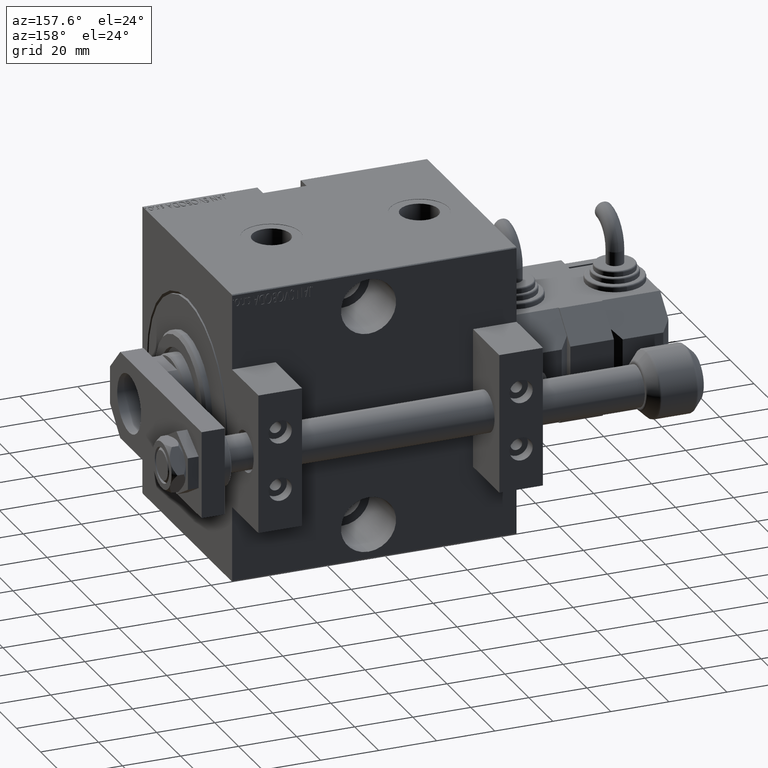
[diagram: clean part render]
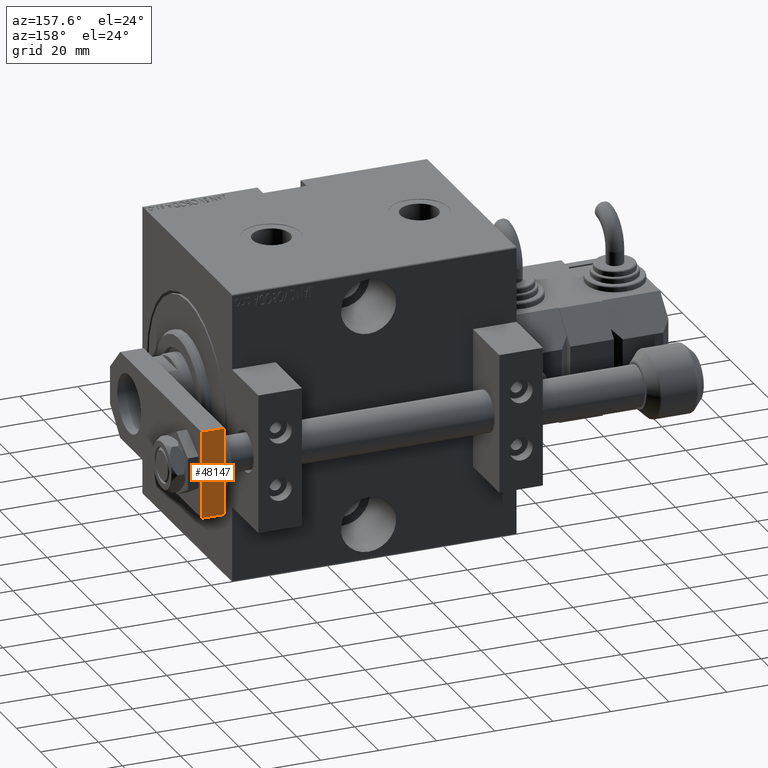
[diagram: same view with one face highlighted and labeled with its STEP entity id]
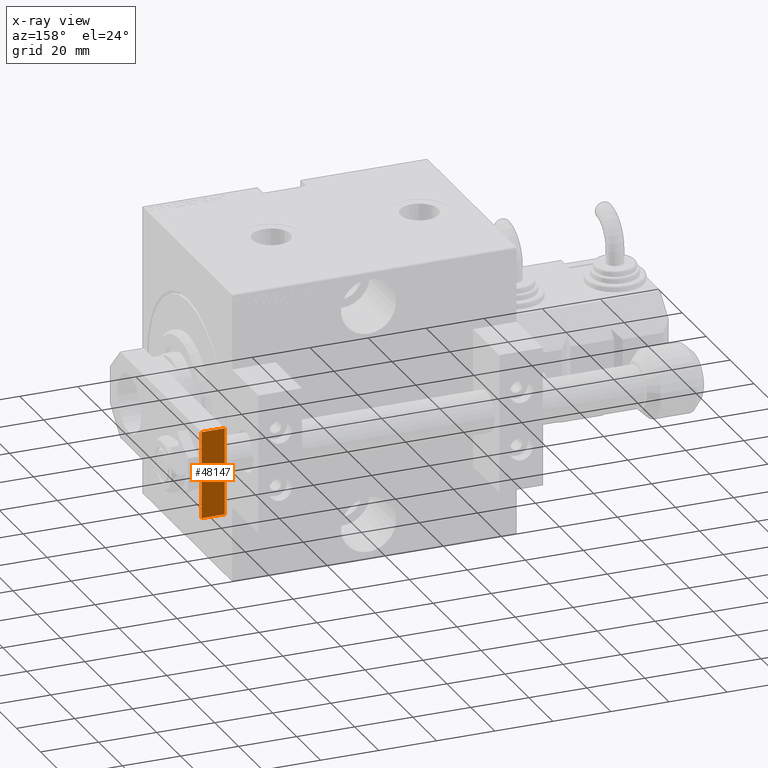
[diagram: x-ray of the same camera — body ghosted, the highlighted face saturated]
A machine part, auxiliary view. The second image highlights one B-rep face of the part: STEP entity #48147.
The next image is the same camera in x-ray: the body ghosted, the highlighted face saturated — about 0% of this face is hidden behind the body in this view.
In plain terms, the highlighted planar face has unit normal (0, -1, -0).
Its self-contained STEP definition (entity closure, byte-faithful):
#425 = DIRECTION ( 'NONE',  ( 0.000000000000000000, -0.000000000000000000, -1.000000000000000000 ) ) ;
#874 = VERTEX_POINT ( 'NONE', #13321 ) ;
#1629 = EDGE_CURVE ( 'NONE', #874, #5644, #32944, .T. ) ;
#3228 = VECTOR ( 'NONE', #15328, 1000.000000000000000 ) ;
#3730 = LINE ( 'NONE', #18845, #3228 ) ;
#4528 = CARTESIAN_POINT ( 'NONE',  ( 15.00000000000000355, 76.50000000000000000, 0.000000000000000000 ) ) ;
#5644 = VERTEX_POINT ( 'NONE', #36088 ) ;
#6970 = FACE_OUTER_BOUND ( 'NONE', #24025, .T. ) ;
#8667 = ORIENTED_EDGE ( 'NONE', *, *, #1629, .F. ) ;
#13321 = CARTESIAN_POINT ( 'NONE',  ( 15.00000000000000355, 76.50000000000000000, 8.000000000000000000 ) ) ;
#13767 = AXIS2_PLACEMENT_3D ( 'NONE', #19299, #22342, #425 ) ;
#13812 = DIRECTION ( 'NONE',  ( -1.000000000000000000, 0.000000000000000000, 0.000000000000000000 ) ) ;
#15328 = DIRECTION ( 'NONE',  ( -1.000000000000000000, 0.000000000000000000, 0.000000000000000000 ) ) ;
#15879 = DIRECTION ( 'NONE',  ( -0.000000000000000000, -0.000000000000000000, -1.000000000000000000 ) ) ;
#16839 = VECTOR ( 'NONE', #15879, 1000.000000000000000 ) ;
#18845 = CARTESIAN_POINT ( 'NONE',  ( 15.00000000000000355, 76.50000000000000000, 0.000000000000000000 ) ) ;
#19049 = PLANE ( 'NONE',  #13767 ) ;
#19299 = CARTESIAN_POINT ( 'NONE',  ( 15.00000000000000355, 76.50000000000000000, 8.000000000000000000 ) ) ;
#20499 = ORIENTED_EDGE ( 'NONE', *, *, #44898, .T. ) ;
#20864 = LINE ( 'NONE', #47518, #49429 ) ;
#21607 = DIRECTION ( 'NONE',  ( -0.000000000000000000, -0.000000000000000000, -1.000000000000000000 ) ) ;
#21625 = CARTESIAN_POINT ( 'NONE',  ( 15.00000000000000355, 76.50000000000000000, 8.000000000000000000 ) ) ;
#22012 = ORIENTED_EDGE ( 'NONE', *, *, #35756, .F. ) ;
#22342 = DIRECTION ( 'NONE',  ( 0.000000000000000000, -1.000000000000000000, 0.000000000000000000 ) ) ;
#23184 = LINE ( 'NONE', #42527, #16839 ) ;
#24025 = EDGE_LOOP ( 'NONE', ( #20499, #22012, #8667, #48093 ) ) ;
#25537 = VERTEX_POINT ( 'NONE', #26256 ) ;
#26256 = CARTESIAN_POINT ( 'NONE',  ( -14.99999999999999822, 76.50000000000000000, 0.000000000000000000 ) ) ;
#32880 = VECTOR ( 'NONE', #13812, 1000.000000000000000 ) ;
#32944 = LINE ( 'NONE', #21625, #32880 ) ;
#35756 = EDGE_CURVE ( 'NONE', #5644, #25537, #20864, .T. ) ;
#36088 = CARTESIAN_POINT ( 'NONE',  ( -14.99999999999999822, 76.50000000000000000, 8.000000000000000000 ) ) ;
#39295 = EDGE_CURVE ( 'NONE', #874, #43728, #23184, .T. ) ;
#42527 = CARTESIAN_POINT ( 'NONE',  ( 15.00000000000000355, 76.50000000000000000, 8.000000000000000000 ) ) ;
#43728 = VERTEX_POINT ( 'NONE', #4528 ) ;
#44898 = EDGE_CURVE ( 'NONE', #43728, #25537, #3730, .T. ) ;
#47518 = CARTESIAN_POINT ( 'NONE',  ( -14.99999999999999822, 76.50000000000000000, 8.000000000000000000 ) ) ;
#48093 = ORIENTED_EDGE ( 'NONE', *, *, #39295, .T. ) ;
#48147 = ADVANCED_FACE ( 'NONE', ( #6970 ), #19049, .F. ) ;
#49429 = VECTOR ( 'NONE', #21607, 1000.000000000000000 ) ;